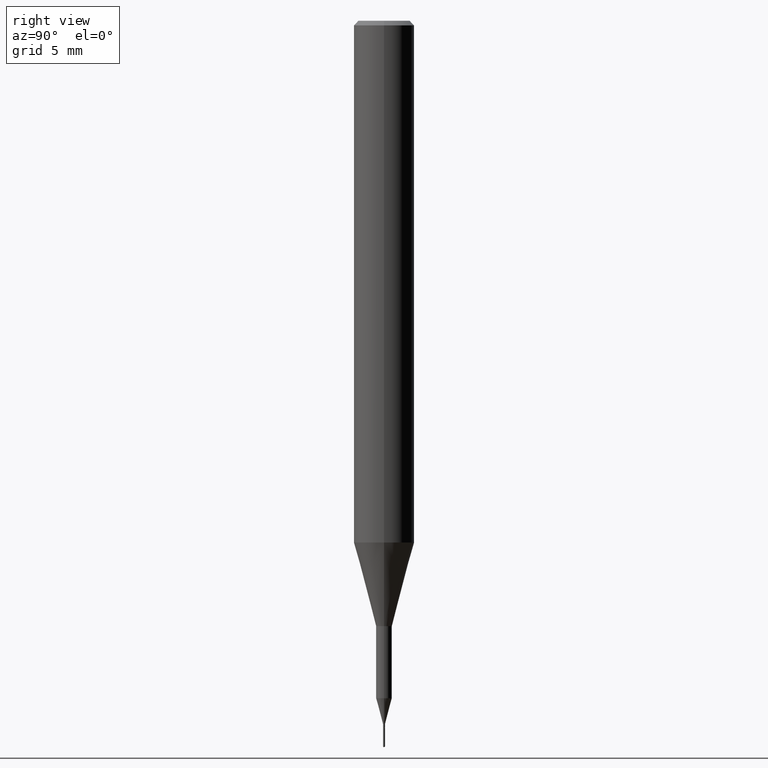
[diagram: clean part render]
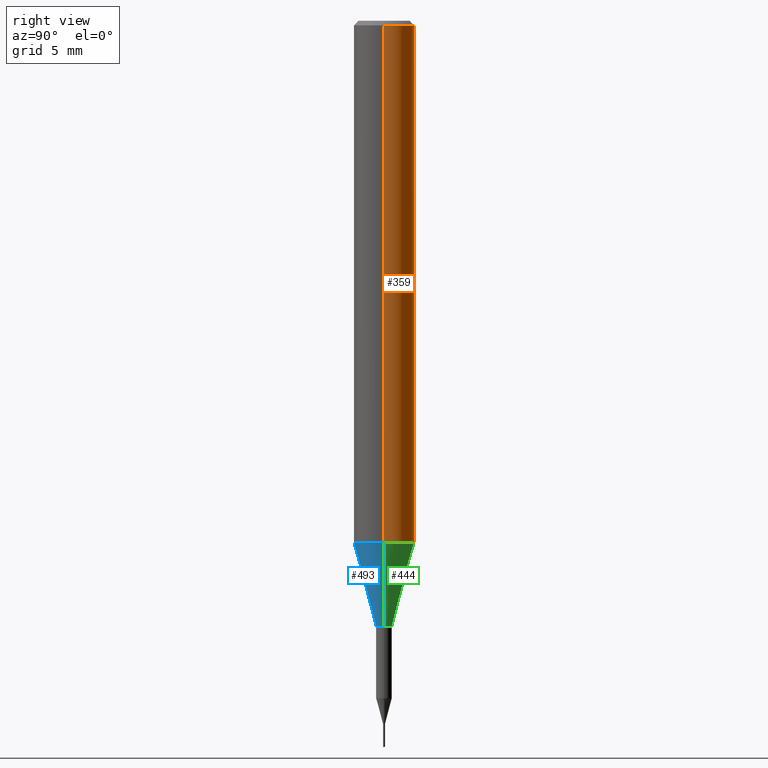
[diagram: same view with three faces highlighted in distinct colors, each labeled with its STEP entity id]
A machine part, right view with three faces highlighted in distinct colors.
Their STEP definitions:

[orange] entity #359 — the highlighted cylindrical surface (edge-blend (fillet) strip) has radius 1.5875 mm, axis along (-0, 0, 1).
#3 = DIRECTION ( 'NONE',  ( -2.445468806185136597E-29, 3.491481338843145583E-15, 1.000000000000000000 ) ) ;
#28 = EDGE_LOOP ( 'NONE', ( #489, #231, #439, #350 ) ) ;
#47 = CARTESIAN_POINT ( 'NONE',  ( 0.000000000000000000, 0.000000000000000000, 0.000000000000000000 ) ) ;
#50 = DIRECTION ( 'NONE',  ( 1.000000000000000000, -6.982962677686264344E-15, 0.000000000000000000 ) ) ;
#62 = AXIS2_PLACEMENT_3D ( 'NONE', #502, #410, #227 ) ;
#92 = DIRECTION ( 'NONE',  ( -2.445468806185136877E-29, 3.491481338843145188E-15, 1.000000000000000000 ) ) ;
#102 = CARTESIAN_POINT ( 'NONE',  ( -0.06250000000000006939, 4.440892098500631092E-16, -3.074334431409319267E-30 ) ) ;
#113 = CARTESIAN_POINT ( 'NONE',  ( -0.06250000000000012490, -3.317607122755211895E-15, -1.077392650149939346 ) ) ;
#159 = CARTESIAN_POINT ( 'NONE',  ( 0.06250000000000000000, -4.691678049070463404E-16, -0.009375000000000060368 ) ) ;
#168 = DIRECTION ( 'NONE',  ( -2.445468806185136877E-29, 3.491481338843145188E-15, 1.000000000000000000 ) ) ;
#224 = VECTOR ( 'NONE', #92, 39.37007874015748143 ) ;
#226 = DIRECTION ( 'NONE',  ( -2.445468806185136597E-29, 3.491481338843145583E-15, 1.000000000000000000 ) ) ;
#227 = DIRECTION ( 'NONE',  ( 1.000000000000000000, -6.982962677686266711E-15, 0.000000000000000000 ) ) ;
#231 = ORIENTED_EDGE ( 'NONE', *, *, #527, .T. ) ;
#232 = CARTESIAN_POINT ( 'NONE',  ( 2.634730117954813298E-29, -3.761696332605275695E-15, -1.077392650149939346 ) ) ;
#266 = EDGE_CURVE ( 'NONE', #345, #418, #354, .T. ) ;
#286 = CARTESIAN_POINT ( 'NONE',  ( 0.06250000000000012490, -4.198131499960668153E-15, -1.077392650149939346 ) ) ;
#302 = EDGE_CURVE ( 'NONE', #345, #422, #382, .T. ) ;
#336 = CARTESIAN_POINT ( 'NONE',  ( -0.06250000000000000000, -1.453125275228401137E-15, -0.009375000000000060368 ) ) ;
#345 = VERTEX_POINT ( 'NONE', #286 ) ;
#347 = VECTOR ( 'NONE', #168, 39.37007874015748143 ) ;
#350 = ORIENTED_EDGE ( 'NONE', *, *, #266, .F. ) ;
#354 = LINE ( 'NONE', #579, #347 ) ;
#359 = ADVANCED_FACE ( 'NONE', ( #426 ), #546, .T. ) ;
#369 = CIRCLE ( 'NONE', #62, 0.06250000000000000000 ) ;
#382 = CIRCLE ( 'NONE', #404, 0.06250000000000012490 ) ;
#392 = VERTEX_POINT ( 'NONE', #336 ) ;
#404 = AXIS2_PLACEMENT_3D ( 'NONE', #232, #3, #50 ) ;
#410 = DIRECTION ( 'NONE',  ( -2.445468806185136597E-29, 3.491481338843145583E-15, 1.000000000000000000 ) ) ;
#413 = AXIS2_PLACEMENT_3D ( 'NONE', #47, #226, #548 ) ;
#418 = VERTEX_POINT ( 'NONE', #159 ) ;
#422 = VERTEX_POINT ( 'NONE', #113 ) ;
#426 = FACE_OUTER_BOUND ( 'NONE', #28, .T. ) ;
#439 = ORIENTED_EDGE ( 'NONE', *, *, #445, .F. ) ;
#445 = EDGE_CURVE ( 'NONE', #418, #392, #369, .T. ) ;
#489 = ORIENTED_EDGE ( 'NONE', *, *, #302, .T. ) ;
#502 = CARTESIAN_POINT ( 'NONE',  ( 2.292627005798580623E-31, -3.273263755165470184E-17, -0.009375000000000060368 ) ) ;
#527 = EDGE_CURVE ( 'NONE', #422, #392, #552, .T. ) ;
#546 = CYLINDRICAL_SURFACE ( 'NONE', #413, 0.06250000000000006939 ) ;
#548 = DIRECTION ( 'NONE',  ( 1.000000000000000000, -6.982962677686266711E-15, 4.876176775795935793E-29 ) ) ;
#552 = LINE ( 'NONE', #102, #224 ) ;
#579 = CARTESIAN_POINT ( 'NONE',  ( 0.06250000000000006939, -4.364351673553921624E-16, 3.047610484872463374E-30 ) ) ;

[blue] entity #493 — the highlighted conical surface has half-angle 15 deg.
#13 = CIRCLE ( 'NONE', #309, 0.01624999999999999709 ) ;
#44 = DIRECTION ( 'NONE',  ( -2.445468806185136597E-29, 3.491481338843145583E-15, 1.000000000000000000 ) ) ;
#45 = VECTOR ( 'NONE', #339, 39.37007874015747433 ) ;
#46 = AXIS2_PLACEMENT_3D ( 'NONE', #285, #328, #559 ) ;
#67 = ORIENTED_EDGE ( 'NONE', *, *, #365, .F. ) ;
#82 = EDGE_CURVE ( 'NONE', #585, #403, #13, .T. ) ;
#113 = CARTESIAN_POINT ( 'NONE',  ( -0.06250000000000012490, -3.317607122755211895E-15, -1.077392650149939346 ) ) ;
#116 = DIRECTION ( 'NONE',  ( 0.2588190451025214611, 1.565188264969621573E-15, 0.9659258262890682012 ) ) ;
#129 = CARTESIAN_POINT ( 'NONE',  ( 3.056836007731421306E-29, -4.364351673553932471E-15, -1.250000000000000000 ) ) ;
#143 = EDGE_CURVE ( 'NONE', #585, #422, #149, .T. ) ;
#149 = LINE ( 'NONE', #428, #45 ) ;
#172 = CIRCLE ( 'NONE', #46, 0.06250000000000012490 ) ;
#173 = CARTESIAN_POINT ( 'NONE',  ( 2.634730117954813298E-29, -3.761696332605275695E-15, -1.077392650149939346 ) ) ;
#182 = ORIENTED_EDGE ( 'NONE', *, *, #143, .F. ) ;
#201 = CARTESIAN_POINT ( 'NONE',  ( 0.01624999999999999709, -4.477824817066334148E-15, -1.250000000000000000 ) ) ;
#209 = AXIS2_PLACEMENT_3D ( 'NONE', #173, #363, #424 ) ;
#285 = CARTESIAN_POINT ( 'NONE',  ( 2.634730117954813298E-29, -3.761696332605275695E-15, -1.077392650149939346 ) ) ;
#286 = CARTESIAN_POINT ( 'NONE',  ( 0.06250000000000012490, -4.198131499960668153E-15, -1.077392650149939346 ) ) ;
#309 = AXIS2_PLACEMENT_3D ( 'NONE', #129, #44, #431 ) ;
#328 = DIRECTION ( 'NONE',  ( -2.445468806185136597E-29, 3.491481338843145583E-15, 1.000000000000000000 ) ) ;
#331 = ORIENTED_EDGE ( 'NONE', *, *, #82, .T. ) ;
#339 = DIRECTION ( 'NONE',  ( -0.2588190451025214611, 5.211531920934551042E-15, 0.9659258262890682012 ) ) ;
#342 = CARTESIAN_POINT ( 'NONE',  ( -0.01624999999999999709, -4.508686595745605419E-15, -1.250000000000000000 ) ) ;
#345 = VERTEX_POINT ( 'NONE', #286 ) ;
#363 = DIRECTION ( 'NONE',  ( -2.445468806185136597E-29, 3.491481338843145583E-15, 1.000000000000000000 ) ) ;
#364 = ORIENTED_EDGE ( 'NONE', *, *, #539, .T. ) ;
#365 = EDGE_CURVE ( 'NONE', #422, #345, #172, .T. ) ;
#386 = CARTESIAN_POINT ( 'NONE',  ( 0.06250000000000012490, -4.198131499960668153E-15, -1.077392650149939346 ) ) ;
#403 = VERTEX_POINT ( 'NONE', #201 ) ;
#412 = FACE_OUTER_BOUND ( 'NONE', #446, .T. ) ;
#422 = VERTEX_POINT ( 'NONE', #113 ) ;
#424 = DIRECTION ( 'NONE',  ( 1.000000000000000000, -6.982962677686264344E-15, 0.000000000000000000 ) ) ;
#428 = CARTESIAN_POINT ( 'NONE',  ( -0.06250000000000012490, -3.317607122755211895E-15, -1.077392650149939346 ) ) ;
#431 = DIRECTION ( 'NONE',  ( 1.000000000000000000, -6.982962677686288799E-15, 0.000000000000000000 ) ) ;
#446 = EDGE_LOOP ( 'NONE', ( #182, #331, #364, #67 ) ) ;
#450 = VECTOR ( 'NONE', #116, 39.37007874015747433 ) ;
#466 = CONICAL_SURFACE ( 'NONE', #209, 0.06250000000000012490, 0.2617993877991501295 ) ;
#474 = LINE ( 'NONE', #386, #450 ) ;
#493 = ADVANCED_FACE ( 'NONE', ( #412 ), #466, .T. ) ;
#539 = EDGE_CURVE ( 'NONE', #403, #345, #474, .T. ) ;
#559 = DIRECTION ( 'NONE',  ( 1.000000000000000000, -6.982962677686264344E-15, 0.000000000000000000 ) ) ;
#585 = VERTEX_POINT ( 'NONE', #342 ) ;

[green] entity #444 — the highlighted conical surface has half-angle 15 deg.
#3 = DIRECTION ( 'NONE',  ( -2.445468806185136597E-29, 3.491481338843145583E-15, 1.000000000000000000 ) ) ;
#24 = CIRCLE ( 'NONE', #333, 0.01624999999999999709 ) ;
#45 = VECTOR ( 'NONE', #339, 39.37007874015747433 ) ;
#50 = DIRECTION ( 'NONE',  ( 1.000000000000000000, -6.982962677686264344E-15, 0.000000000000000000 ) ) ;
#74 = ORIENTED_EDGE ( 'NONE', *, *, #539, .F. ) ;
#113 = CARTESIAN_POINT ( 'NONE',  ( -0.06250000000000012490, -3.317607122755211895E-15, -1.077392650149939346 ) ) ;
#116 = DIRECTION ( 'NONE',  ( 0.2588190451025214611, 1.565188264969621573E-15, 0.9659258262890682012 ) ) ;
#132 = DIRECTION ( 'NONE',  ( -2.445468806185136597E-29, 3.491481338843145583E-15, 1.000000000000000000 ) ) ;
#134 = EDGE_LOOP ( 'NONE', ( #293, #401, #572, #74 ) ) ;
#143 = EDGE_CURVE ( 'NONE', #585, #422, #149, .T. ) ;
#149 = LINE ( 'NONE', #428, #45 ) ;
#163 = EDGE_CURVE ( 'NONE', #403, #585, #24, .T. ) ;
#201 = CARTESIAN_POINT ( 'NONE',  ( 0.01624999999999999709, -4.477824817066334148E-15, -1.250000000000000000 ) ) ;
#225 = CARTESIAN_POINT ( 'NONE',  ( 2.634730117954813298E-29, -3.761696332605275695E-15, -1.077392650149939346 ) ) ;
#232 = CARTESIAN_POINT ( 'NONE',  ( 2.634730117954813298E-29, -3.761696332605275695E-15, -1.077392650149939346 ) ) ;
#286 = CARTESIAN_POINT ( 'NONE',  ( 0.06250000000000012490, -4.198131499960668153E-15, -1.077392650149939346 ) ) ;
#293 = ORIENTED_EDGE ( 'NONE', *, *, #163, .T. ) ;
#298 = DIRECTION ( 'NONE',  ( -2.445468806185136597E-29, 3.491481338843145583E-15, 1.000000000000000000 ) ) ;
#301 = CARTESIAN_POINT ( 'NONE',  ( 3.056836007731421306E-29, -4.364351673553932471E-15, -1.250000000000000000 ) ) ;
#302 = EDGE_CURVE ( 'NONE', #345, #422, #382, .T. ) ;
#333 = AXIS2_PLACEMENT_3D ( 'NONE', #301, #298, #377 ) ;
#339 = DIRECTION ( 'NONE',  ( -0.2588190451025214611, 5.211531920934551042E-15, 0.9659258262890682012 ) ) ;
#342 = CARTESIAN_POINT ( 'NONE',  ( -0.01624999999999999709, -4.508686595745605419E-15, -1.250000000000000000 ) ) ;
#345 = VERTEX_POINT ( 'NONE', #286 ) ;
#377 = DIRECTION ( 'NONE',  ( 1.000000000000000000, -6.982962677686288799E-15, 0.000000000000000000 ) ) ;
#382 = CIRCLE ( 'NONE', #404, 0.06250000000000012490 ) ;
#386 = CARTESIAN_POINT ( 'NONE',  ( 0.06250000000000012490, -4.198131499960668153E-15, -1.077392650149939346 ) ) ;
#401 = ORIENTED_EDGE ( 'NONE', *, *, #143, .T. ) ;
#403 = VERTEX_POINT ( 'NONE', #201 ) ;
#404 = AXIS2_PLACEMENT_3D ( 'NONE', #232, #3, #50 ) ;
#422 = VERTEX_POINT ( 'NONE', #113 ) ;
#428 = CARTESIAN_POINT ( 'NONE',  ( -0.06250000000000012490, -3.317607122755211895E-15, -1.077392650149939346 ) ) ;
#444 = ADVANCED_FACE ( 'NONE', ( #452 ), #562, .T. ) ;
#450 = VECTOR ( 'NONE', #116, 39.37007874015747433 ) ;
#452 = FACE_OUTER_BOUND ( 'NONE', #134, .T. ) ;
#474 = LINE ( 'NONE', #386, #450 ) ;
#509 = AXIS2_PLACEMENT_3D ( 'NONE', #225, #132, #587 ) ;
#539 = EDGE_CURVE ( 'NONE', #403, #345, #474, .T. ) ;
#562 = CONICAL_SURFACE ( 'NONE', #509, 0.06250000000000012490, 0.2617993877991501295 ) ;
#572 = ORIENTED_EDGE ( 'NONE', *, *, #302, .F. ) ;
#585 = VERTEX_POINT ( 'NONE', #342 ) ;
#587 = DIRECTION ( 'NONE',  ( 1.000000000000000000, -6.982962677686264344E-15, 0.000000000000000000 ) ) ;